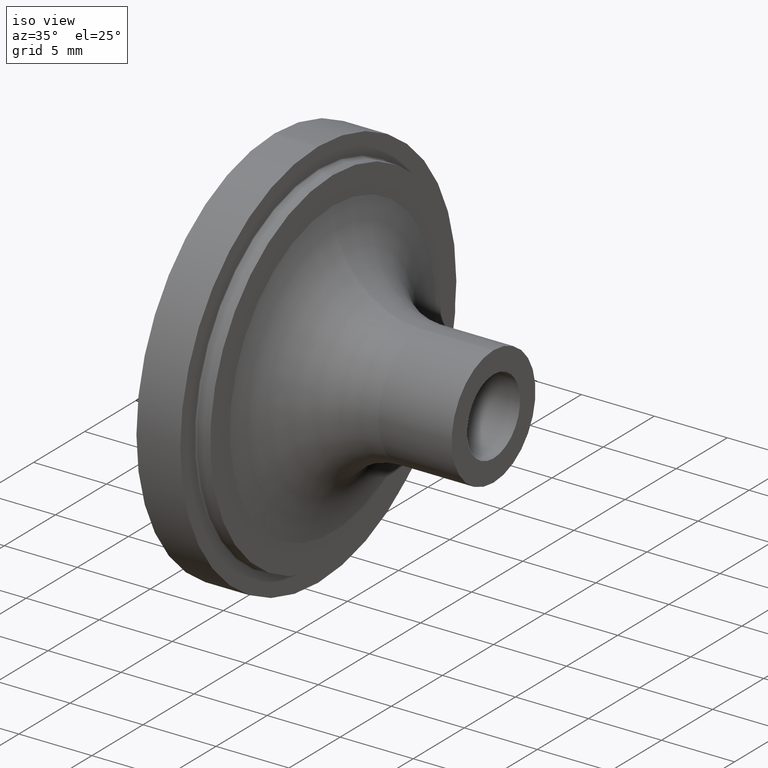
[diagram: clean part render]
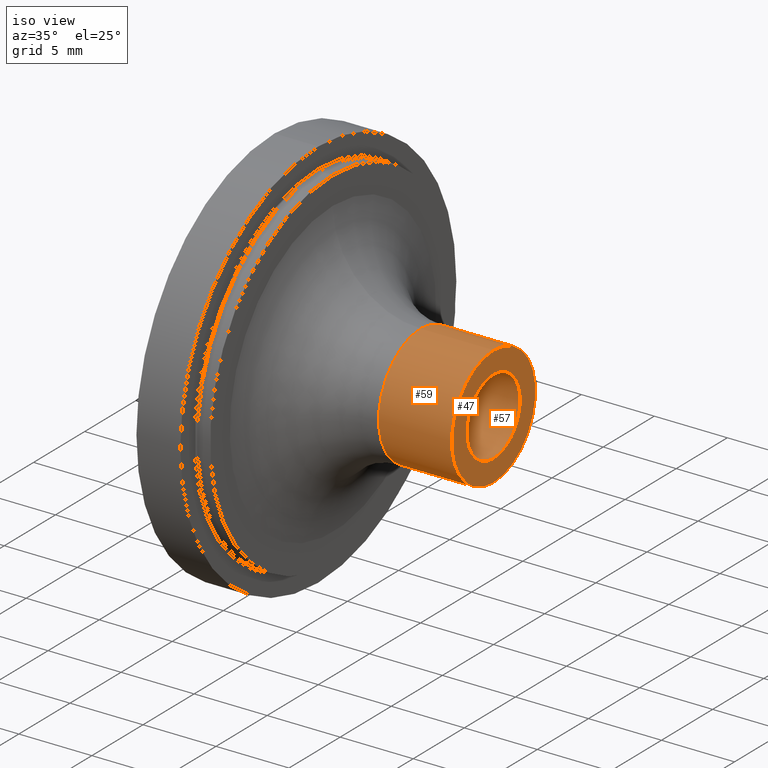
[diagram: same view with one multi-face feature highlighted, each face labeled with its STEP entity id]
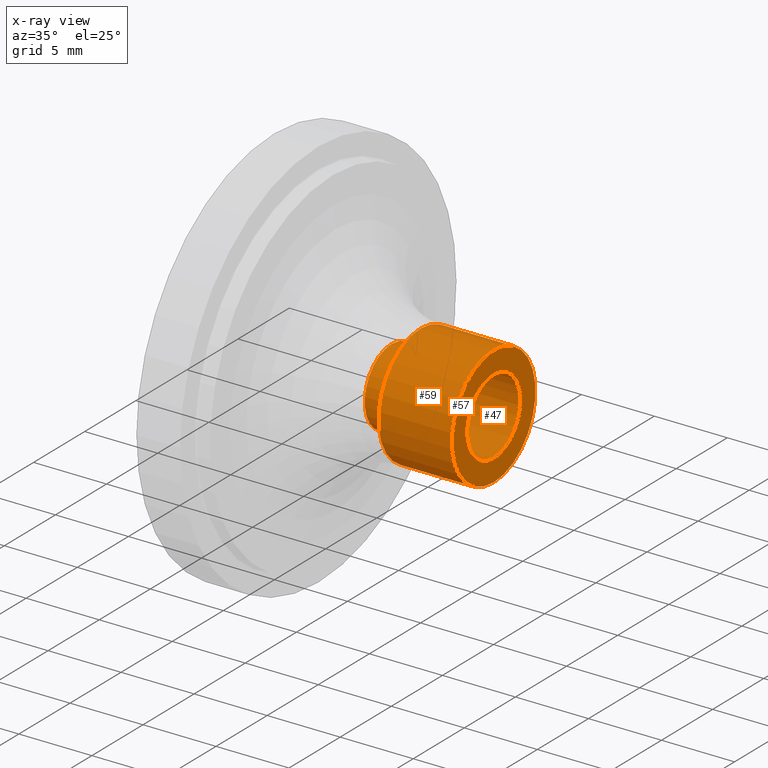
[diagram: x-ray of the same camera — body ghosted, the whole feature saturated]
A machine part, iso view. The highlighted faces form ONE feature: a stepped (counterbored) hole: 2 coaxial cylindrical walls of radii 2.6 -> 4.1 mm joined by 1 annular planar shoulder face(s). The faces share edges in the B-rep.
The next image is the same camera in x-ray: the body ghosted and the whole hole feature saturated, so the bore chain is visible through the body.
Their STEP definitions:
[1] entity #59 (Cylinder):
#59 = ADVANCED_FACE( '', ( #124, #125 ), #126, .T. );
#124 = FACE_OUTER_BOUND( '', #183, .T. );
#125 = FACE_OUTER_BOUND( '', #184, .T. );
#126 = CYLINDRICAL_SURFACE( '', #185, 4.10000000000000 );
#183 = EDGE_LOOP( '', ( #258 ) );
#184 = EDGE_LOOP( '', ( #259 ) );
#185 = AXIS2_PLACEMENT_3D( '', #260, #261, #262 );
#258 = ORIENTED_EDGE( '', *, *, #274, .F. );
#259 = ORIENTED_EDGE( '', *, *, #284, .T. );
#260 = CARTESIAN_POINT( '', ( -60.0000000000000, 0.000000000000000, 0.000000000000000 ) );
#261 = DIRECTION( '', ( 1.00000000000000, -0.000000000000000, -0.000000000000000 ) );
#262 = DIRECTION( '', ( 0.000000000000000, 0.000000000000000, 1.00000000000000 ) );
#274 = EDGE_CURVE( '', #303, #303, #304, .T. );
#284 = EDGE_CURVE( '', #319, #319, #320, .T. );
#303 = VERTEX_POINT( '', #342 );
#304 = CIRCLE( '', #343, 4.10000000000000 );
#319 = VERTEX_POINT( '', #358 );
#320 = CIRCLE( '', #359, 4.10000000000000 );
#342 = CARTESIAN_POINT( '', ( -5.00000000000000, 0.000000000000000, 4.10000000000000 ) );
#343 = AXIS2_PLACEMENT_3D( '', #382, #383, #384 );
#358 = CARTESIAN_POINT( '', ( 0.000000000000000, 0.000000000000000, 4.10000000000000 ) );
#359 = AXIS2_PLACEMENT_3D( '', #400, #401, #402 );
#382 = CARTESIAN_POINT( '', ( -5.00000000000000, 0.000000000000000, 0.000000000000000 ) );
#383 = DIRECTION( '', ( -1.00000000000000, 0.000000000000000, 0.000000000000000 ) );
#384 = DIRECTION( '', ( 0.000000000000000, 0.000000000000000, 1.00000000000000 ) );
#400 = CARTESIAN_POINT( '', ( 0.000000000000000, 0.000000000000000, 0.000000000000000 ) );
#401 = DIRECTION( '', ( -1.00000000000000, 0.000000000000000, 0.000000000000000 ) );
#402 = DIRECTION( '', ( 0.000000000000000, 0.000000000000000, 1.00000000000000 ) );
[2] entity #57 (Cylinder):
#57 = ADVANCED_FACE( '', ( #120, #121 ), #122, .F. );
#120 = FACE_OUTER_BOUND( '', #179, .T. );
#121 = FACE_OUTER_BOUND( '', #180, .T. );
#122 = CYLINDRICAL_SURFACE( '', #181, 2.60000000000000 );
#179 = EDGE_LOOP( '', ( #252 ) );
#180 = EDGE_LOOP( '', ( #253 ) );
#181 = AXIS2_PLACEMENT_3D( '', #254, #255, #256 );
#252 = ORIENTED_EDGE( '', *, *, #283, .F. );
#253 = ORIENTED_EDGE( '', *, *, #281, .T. );
#254 = CARTESIAN_POINT( '', ( 26.0243829935321, 0.000000000000000, 4.33680868994202E-016 ) );
#255 = DIRECTION( '', ( 1.00000000000000, -0.000000000000000, -0.000000000000000 ) );
#256 = DIRECTION( '', ( 0.000000000000000, 0.000000000000000, 1.00000000000000 ) );
#281 = EDGE_CURVE( '', #314, #314, #315, .T. );
#283 = EDGE_CURVE( '', #317, #317, #318, .T. );
#314 = VERTEX_POINT( '', #353 );
#315 = CIRCLE( '', #354, 2.60000000000000 );
#317 = VERTEX_POINT( '', #356 );
#318 = CIRCLE( '', #357, 2.60000000000000 );
#353 = CARTESIAN_POINT( '', ( -7.00000000000000, 0.000000000000000, 2.60000000000000 ) );
#354 = AXIS2_PLACEMENT_3D( '', #394, #395, #396 );
#356 = CARTESIAN_POINT( '', ( 0.000000000000000, 0.000000000000000, 2.60000000000000 ) );
#357 = AXIS2_PLACEMENT_3D( '', #397, #398, #399 );
#394 = CARTESIAN_POINT( '', ( -7.00000000000000, 0.000000000000000, 0.000000000000000 ) );
#395 = DIRECTION( '', ( -1.00000000000000, 0.000000000000000, 0.000000000000000 ) );
#396 = DIRECTION( '', ( 0.000000000000000, 0.000000000000000, 1.00000000000000 ) );
#397 = CARTESIAN_POINT( '', ( 0.000000000000000, 0.000000000000000, 4.33680868994202E-016 ) );
#398 = DIRECTION( '', ( -1.00000000000000, 0.000000000000000, 0.000000000000000 ) );
#399 = DIRECTION( '', ( 0.000000000000000, 0.000000000000000, 1.00000000000000 ) );
[3] entity #47 (Plane):
#47 = ADVANCED_FACE( '', ( #100, #101 ), #102, .F. );
#100 = FACE_BOUND( '', #159, .T. );
#101 = FACE_OUTER_BOUND( '', #160, .T. );
#102 = PLANE( '', #161 );
#159 = EDGE_LOOP( '', ( #222 ) );
#160 = EDGE_LOOP( '', ( #223 ) );
#161 = AXIS2_PLACEMENT_3D( '', #224, #225, #226 );
#222 = ORIENTED_EDGE( '', *, *, #283, .T. );
#223 = ORIENTED_EDGE( '', *, *, #284, .F. );
#224 = CARTESIAN_POINT( '', ( 0.000000000000000, 0.000000000000000, 0.000000000000000 ) );
#225 = DIRECTION( '', ( -1.00000000000000, 0.000000000000000, 0.000000000000000 ) );
#226 = DIRECTION( '', ( 0.000000000000000, 0.000000000000000, 1.00000000000000 ) );
#283 = EDGE_CURVE( '', #317, #317, #318, .T. );
#284 = EDGE_CURVE( '', #319, #319, #320, .T. );
#317 = VERTEX_POINT( '', #356 );
#318 = CIRCLE( '', #357, 2.60000000000000 );
#319 = VERTEX_POINT( '', #358 );
#320 = CIRCLE( '', #359, 4.10000000000000 );
#356 = CARTESIAN_POINT( '', ( 0.000000000000000, 0.000000000000000, 2.60000000000000 ) );
#357 = AXIS2_PLACEMENT_3D( '', #397, #398, #399 );
#358 = CARTESIAN_POINT( '', ( 0.000000000000000, 0.000000000000000, 4.10000000000000 ) );
#359 = AXIS2_PLACEMENT_3D( '', #400, #401, #402 );
#397 = CARTESIAN_POINT( '', ( 0.000000000000000, 0.000000000000000, 4.33680868994202E-016 ) );
#398 = DIRECTION( '', ( -1.00000000000000, 0.000000000000000, 0.000000000000000 ) );
#399 = DIRECTION( '', ( 0.000000000000000, 0.000000000000000, 1.00000000000000 ) );
#400 = CARTESIAN_POINT( '', ( 0.000000000000000, 0.000000000000000, 0.000000000000000 ) );
#401 = DIRECTION( '', ( -1.00000000000000, 0.000000000000000, 0.000000000000000 ) );
#402 = DIRECTION( '', ( 0.000000000000000, 0.000000000000000, 1.00000000000000 ) );